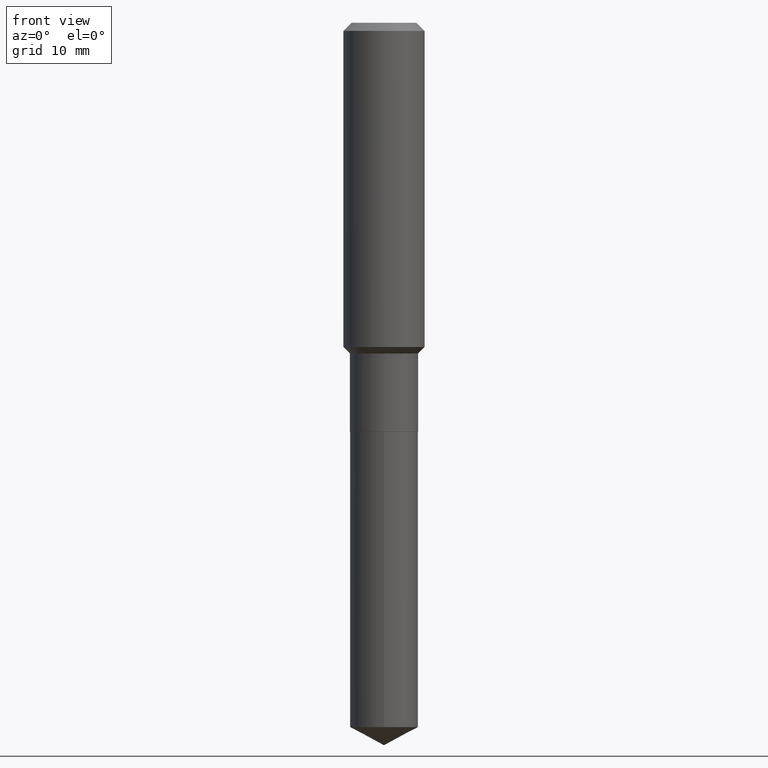
[diagram: clean part render]
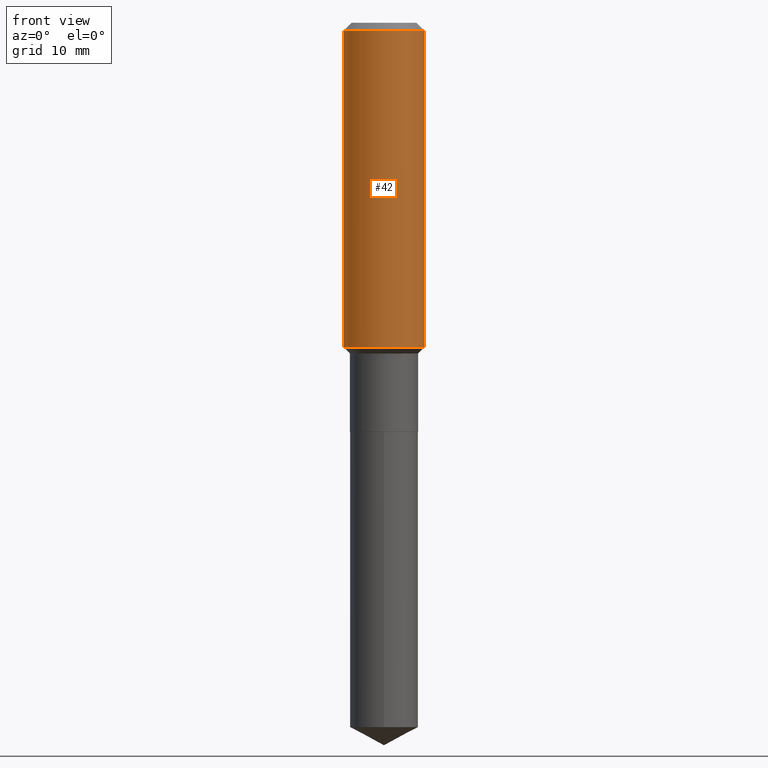
[diagram: same view with one face highlighted and labeled with its STEP entity id]
A machine part, front view. The second image highlights one B-rep face of the part: STEP entity #42.
In plain terms, the highlighted cylindrical surface (partial cylindrical patch) has radius 5 mm, axis along (-0, 0, 1).
Its self-contained STEP definition (entity closure, byte-faithful):
#20 = CARTESIAN_POINT ( 'NONE',  ( -0.1968500000000001082, 1.398703375343757985E-15, -9.682923725166787881E-30 ) ) ;
#38 = CARTESIAN_POINT ( 'NONE',  ( 0.1968500000000000527, -1.512055823412797583E-15, -0.03937000000000027283 ) ) ;
#42 = ADVANCED_FACE ( 'NONE', ( #452 ), #229, .T. ) ;
#72 = ORIENTED_EDGE ( 'NONE', *, *, #400, .T. ) ;
#73 = DIRECTION ( 'NONE',  ( -2.445468806185136597E-29, 3.491481338843145583E-15, 1.000000000000000000 ) ) ;
#78 = ORIENTED_EDGE ( 'NONE', *, *, #182, .F. ) ;
#103 = CARTESIAN_POINT ( 'NONE',  ( 3.845255150845508133E-29, -5.490005257196960571E-15, -1.572399999999999576 ) ) ;
#127 = DIRECTION ( 'NONE',  ( 1.000000000000000000, -6.982962677686266711E-15, 0.000000000000000000 ) ) ;
#134 = CIRCLE ( 'NONE', #422, 0.1968500000000000527 ) ;
#139 = EDGE_LOOP ( 'NONE', ( #78, #483, #72, #450 ) ) ;
#140 = DIRECTION ( 'NONE',  ( 1.000000000000000000, -6.982962677686266711E-15, 4.876176775795935793E-29 ) ) ;
#182 = EDGE_CURVE ( 'NONE', #230, #314, #349, .T. ) ;
#196 = DIRECTION ( 'NONE',  ( -2.445468806185136597E-29, 3.491481338843145583E-15, 1.000000000000000000 ) ) ;
#210 = CARTESIAN_POINT ( 'NONE',  ( 9.627810689950950651E-31, -1.374596203102555808E-16, -0.03937000000000027283 ) ) ;
#219 = VERTEX_POINT ( 'NONE', #255 ) ;
#228 = LINE ( 'NONE', #258, #368 ) ;
#229 = CYLINDRICAL_SURFACE ( 'NONE', #328, 0.1968500000000001082 ) ;
#230 = VERTEX_POINT ( 'NONE', #288 ) ;
#244 = EDGE_CURVE ( 'NONE', #314, #371, #134, .T. ) ;
#255 = CARTESIAN_POINT ( 'NONE',  ( 0.1968500000000002192, -6.864601460299502968E-15, -1.572399999999999576 ) ) ;
#258 = CARTESIAN_POINT ( 'NONE',  ( 0.1968500000000001082, -1.374596203102542397E-15, 9.598753983154305062E-30 ) ) ;
#263 = DIRECTION ( 'NONE',  ( 1.000000000000000000, -6.982962677686265922E-15, 0.000000000000000000 ) ) ;
#272 = CARTESIAN_POINT ( 'NONE',  ( -0.1968500000000000527, -1.415029063409849697E-15, -0.03937000000000027283 ) ) ;
#288 = CARTESIAN_POINT ( 'NONE',  ( -0.1968500000000002192, -4.091301881853201994E-15, -1.572399999999999576 ) ) ;
#314 = VERTEX_POINT ( 'NONE', #272 ) ;
#328 = AXIS2_PLACEMENT_3D ( 'NONE', #372, #196, #140 ) ;
#344 = AXIS2_PLACEMENT_3D ( 'NONE', #103, #73, #263 ) ;
#349 = LINE ( 'NONE', #20, #440 ) ;
#358 = DIRECTION ( 'NONE',  ( -2.445468806185136597E-29, 3.491481338843145583E-15, 1.000000000000000000 ) ) ;
#368 = VECTOR ( 'NONE', #405, 39.37007874015748143 ) ;
#371 = VERTEX_POINT ( 'NONE', #38 ) ;
#372 = CARTESIAN_POINT ( 'NONE',  ( 0.000000000000000000, 0.000000000000000000, 0.000000000000000000 ) ) ;
#378 = EDGE_CURVE ( 'NONE', #230, #219, #488, .T. ) ;
#400 = EDGE_CURVE ( 'NONE', #219, #371, #228, .T. ) ;
#405 = DIRECTION ( 'NONE',  ( -2.445468806185136877E-29, 3.491481338843145188E-15, 1.000000000000000000 ) ) ;
#422 = AXIS2_PLACEMENT_3D ( 'NONE', #210, #358, #127 ) ;
#440 = VECTOR ( 'NONE', #486, 39.37007874015748143 ) ;
#450 = ORIENTED_EDGE ( 'NONE', *, *, #244, .F. ) ;
#452 = FACE_OUTER_BOUND ( 'NONE', #139, .T. ) ;
#483 = ORIENTED_EDGE ( 'NONE', *, *, #378, .T. ) ;
#486 = DIRECTION ( 'NONE',  ( -2.445468806185136877E-29, 3.491481338843145188E-15, 1.000000000000000000 ) ) ;
#488 = CIRCLE ( 'NONE', #344, 0.1968500000000002192 ) ;